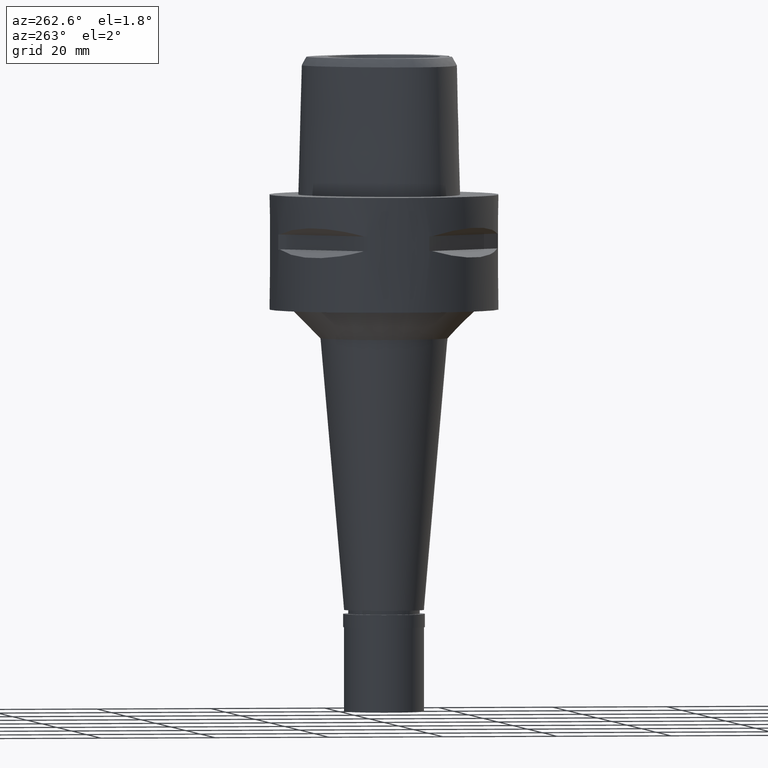
[diagram: clean part render]
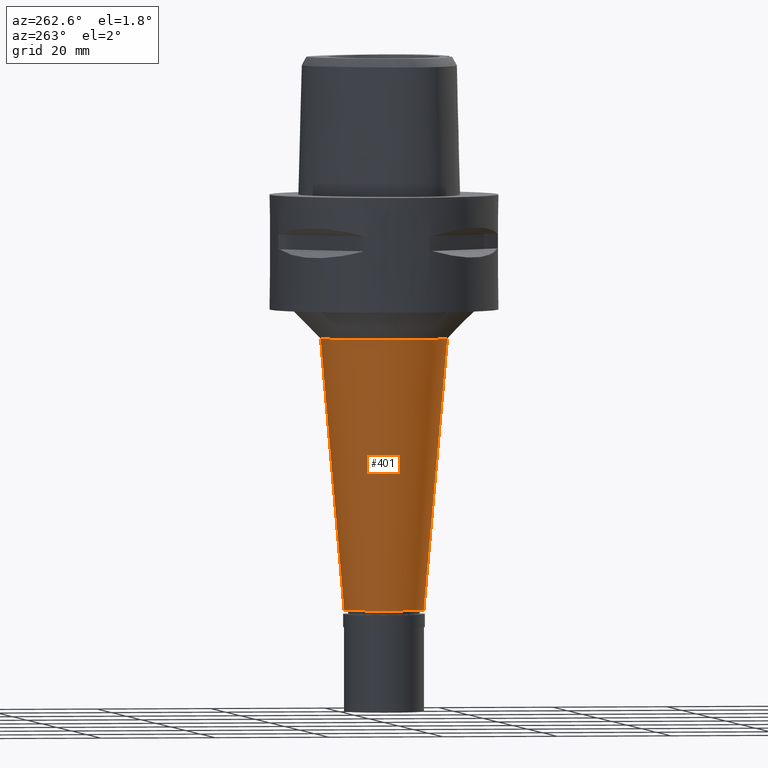
[diagram: same view with one face highlighted and labeled with its STEP entity id]
A machine part, auxiliary view. The second image highlights one B-rep face of the part: STEP entity #401.
In plain terms, the highlighted conical surface has half-angle 5 deg.
Its self-contained STEP definition (entity closure, byte-faithful):
#51 = VERTEX_POINT ( 'NONE', #2740 ) ;
#66 = ORIENTED_EDGE ( 'NONE', *, *, #1339, .T. ) ;
#121 = AXIS2_PLACEMENT_3D ( 'NONE', #2693, #1248, #1301 ) ;
#249 = DIRECTION ( 'NONE',  ( 0.0000000000000000000, -0.08715574274770356011, -0.9961946980917415484 ) ) ;
#252 = CARTESIAN_POINT ( 'NONE',  ( 0.0000000000000000000, 0.0000000000000000000, -72.29999999999999716 ) ) ;
#401 = ADVANCED_FACE ( 'NONE', ( #516 ), #2939, .T. ) ;
#516 = FACE_OUTER_BOUND ( 'NONE', #668, .T. ) ;
#553 = LINE ( 'NONE', #2716, #2923 ) ;
#615 = VERTEX_POINT ( 'NONE', #4100 ) ;
#668 = EDGE_LOOP ( 'NONE', ( #1760, #4588, #1329, #66 ) ) ;
#829 = VERTEX_POINT ( 'NONE', #1470 ) ;
#907 = DIRECTION ( 'NONE',  ( 0.0000000000000000000, -1.000000000000000000, 0.0000000000000000000 ) ) ;
#987 = LINE ( 'NONE', #2002, #1680 ) ;
#1245 = VERTEX_POINT ( 'NONE', #3799 ) ;
#1248 = DIRECTION ( 'NONE',  ( 0.0000000000000000000, 0.0000000000000000000, 1.000000000000000000 ) ) ;
#1301 = DIRECTION ( 'NONE',  ( 0.0000000000000000000, 1.000000000000000000, 0.0000000000000000000 ) ) ;
#1329 = ORIENTED_EDGE ( 'NONE', *, *, #3630, .T. ) ;
#1339 = EDGE_CURVE ( 'NONE', #51, #615, #987, .T. ) ;
#1470 = CARTESIAN_POINT ( 'NONE',  ( 0.0000000000000000000, -11.13821378477999957, -25.00000000000000000 ) ) ;
#1582 = CIRCLE ( 'NONE', #3229, 7.000000000000000000 ) ;
#1673 = DIRECTION ( 'NONE',  ( 0.0000000000000000000, 0.0000000000000000000, 1.000000000000000000 ) ) ;
#1680 = VECTOR ( 'NONE', #249, 1000.000000000000000 ) ;
#1760 = ORIENTED_EDGE ( 'NONE', *, *, #4495, .T. ) ;
#1946 = CARTESIAN_POINT ( 'NONE',  ( 0.0000000000000000000, 0.0000000000000000000, -25.00000000000000000 ) ) ;
#2002 = CARTESIAN_POINT ( 'NONE',  ( 0.0000000000000000000, 11.13821378477999957, -25.00000000000000000 ) ) ;
#2498 = AXIS2_PLACEMENT_3D ( 'NONE', #1946, #4049, #907 ) ;
#2693 = CARTESIAN_POINT ( 'NONE',  ( 0.0000000000000000000, 0.0000000000000000000, -48.64999999999999858 ) ) ;
#2716 = CARTESIAN_POINT ( 'NONE',  ( 0.0000000000000000000, -11.13821378477999957, -25.00000000000000000 ) ) ;
#2740 = CARTESIAN_POINT ( 'NONE',  ( 0.0000000000000000000, 11.13821378477999957, -25.00000000000000000 ) ) ;
#2923 = VECTOR ( 'NONE', #3748, 1000.000000000000000 ) ;
#2939 = CONICAL_SURFACE ( 'NONE', #121, 9.069106892387999608, 0.08726646259969973729 ) ;
#3229 = AXIS2_PLACEMENT_3D ( 'NONE', #252, #1673, #3422 ) ;
#3411 = CIRCLE ( 'NONE', #2498, 11.13821378477999957 ) ;
#3422 = DIRECTION ( 'NONE',  ( 0.0000000000000000000, 1.000000000000000000, 0.0000000000000000000 ) ) ;
#3630 = EDGE_CURVE ( 'NONE', #829, #51, #3411, .T. ) ;
#3748 = DIRECTION ( 'NONE',  ( 0.0000000000000000000, 0.08715574274770356011, -0.9961946980917415484 ) ) ;
#3799 = CARTESIAN_POINT ( 'NONE',  ( 0.0000000000000000000, -7.000000000000000000, -72.29999999999999716 ) ) ;
#4049 = DIRECTION ( 'NONE',  ( 0.0000000000000000000, 0.0000000000000000000, -1.000000000000000000 ) ) ;
#4100 = CARTESIAN_POINT ( 'NONE',  ( 0.0000000000000000000, 7.000000000000000000, -72.29999999999999716 ) ) ;
#4469 = EDGE_CURVE ( 'NONE', #829, #1245, #553, .T. ) ;
#4495 = EDGE_CURVE ( 'NONE', #615, #1245, #1582, .T. ) ;
#4588 = ORIENTED_EDGE ( 'NONE', *, *, #4469, .F. ) ;